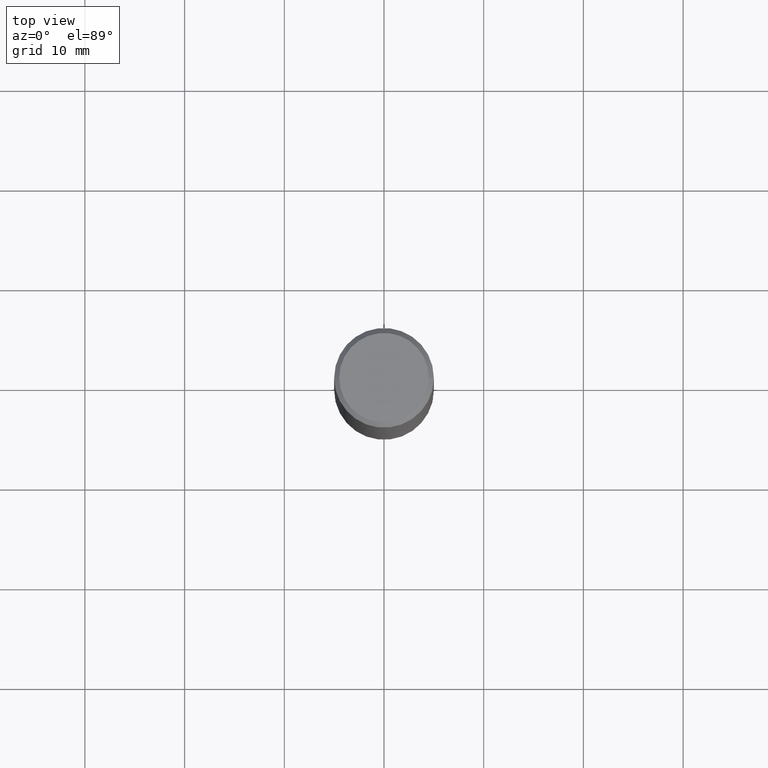
[diagram: clean part render]
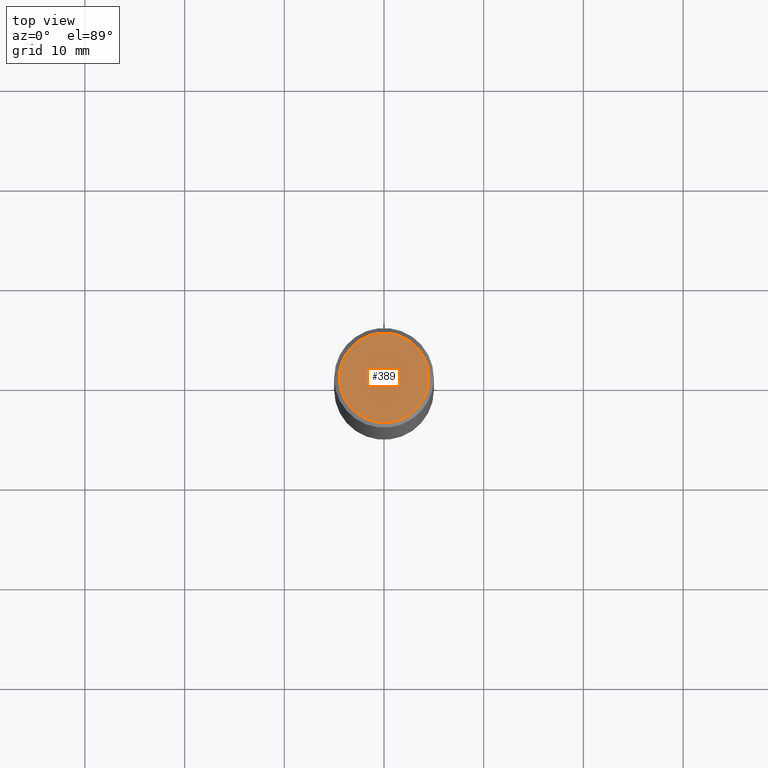
[diagram: same view with one face highlighted and labeled with its STEP entity id]
A machine part, top view. The second image highlights one B-rep face of the part: STEP entity #389.
In plain terms, the highlighted planar face has unit normal (0, -0, -1).
Its self-contained STEP definition (entity closure, byte-faithful):
#24 = DIRECTION ( 'NONE',  ( 2.438088387897960049E-29, -3.491481338843145188E-15, -1.000000000000000000 ) ) ;
#50 = DIRECTION ( 'NONE',  ( -2.445468806185136597E-29, 3.491481338843145583E-15, 1.000000000000000000 ) ) ;
#53 = FACE_OUTER_BOUND ( 'NONE', #66, .T. ) ;
#57 = ORIENTED_EDGE ( 'NONE', *, *, #229, .T. ) ;
#66 = EDGE_LOOP ( 'NONE', ( #171, #57 ) ) ;
#112 = AXIS2_PLACEMENT_3D ( 'NONE', #272, #50, #120 ) ;
#119 = CARTESIAN_POINT ( 'NONE',  ( -2.922783960138615261E-45, 4.172960877065252270E-31, 1.195183497228115035E-16 ) ) ;
#120 = DIRECTION ( 'NONE',  ( 1.000000000000000000, -6.982962677686266711E-15, 4.879147720081023088E-29 ) ) ;
#150 = DIRECTION ( 'NONE',  ( -1.000000000000000000, 6.982962677686265922E-15, -4.876176775795935793E-29 ) ) ;
#153 = PLANE ( 'NONE',  #341 ) ;
#169 = DIRECTION ( 'NONE',  ( 1.000000000000000000, -6.982962677686266711E-15, 4.879147720081023088E-29 ) ) ;
#171 = ORIENTED_EDGE ( 'NONE', *, *, #234, .T. ) ;
#190 = VERTEX_POINT ( 'NONE', #227 ) ;
#206 = CIRCLE ( 'NONE', #368, 0.1768499999999999239 ) ;
#210 = CARTESIAN_POINT ( 'NONE',  ( 1.234936949548815604E-15, 0.1768499999999999239, -5.577092999130041947E-16 ) ) ;
#227 = CARTESIAN_POINT ( 'NONE',  ( -0.1768499999999999239, 1.269851762937247450E-15, 1.195183497228027521E-16 ) ) ;
#229 = EDGE_CURVE ( 'NONE', #240, #190, #206, .T. ) ;
#234 = EDGE_CURVE ( 'NONE', #190, #240, #399, .T. ) ;
#240 = VERTEX_POINT ( 'NONE', #364 ) ;
#272 = CARTESIAN_POINT ( 'NONE',  ( -2.922783960138615261E-45, 4.172960877065252270E-31, 1.195183497228115035E-16 ) ) ;
#341 = AXIS2_PLACEMENT_3D ( 'NONE', #210, #24, #150 ) ;
#364 = CARTESIAN_POINT ( 'NONE',  ( 0.1768499999999999239, -1.316798864272041549E-15, 1.195183497228204275E-16 ) ) ;
#368 = AXIS2_PLACEMENT_3D ( 'NONE', #119, #395, #169 ) ;
#389 = ADVANCED_FACE ( 'NONE', ( #53 ), #153, .F. ) ;
#395 = DIRECTION ( 'NONE',  ( -2.445468806185136597E-29, 3.491481338843145583E-15, 1.000000000000000000 ) ) ;
#399 = CIRCLE ( 'NONE', #112, 0.1768499999999999239 ) ;